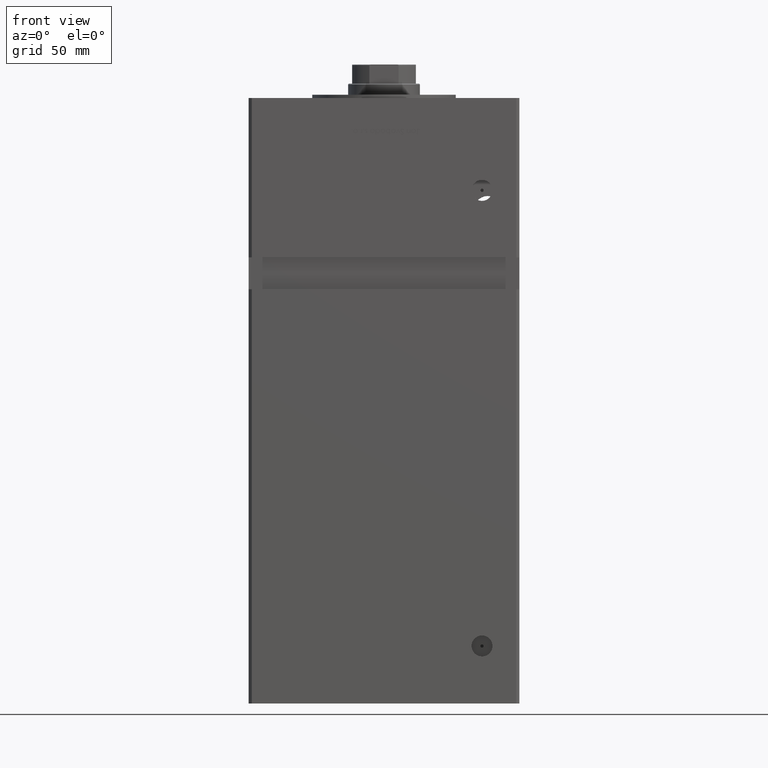
[diagram: clean part render]
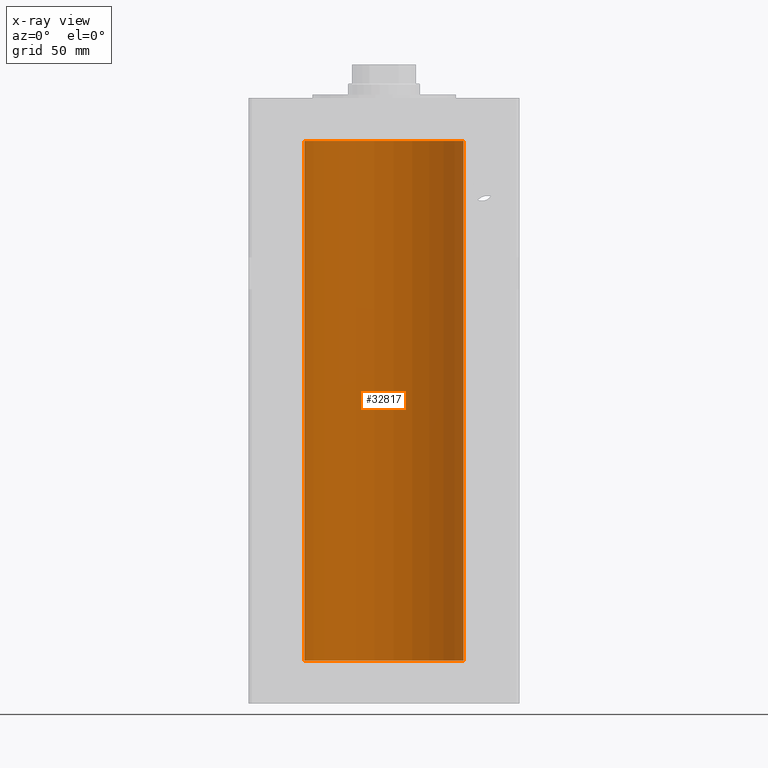
[diagram: x-ray — body ghosted, one internal face saturated and labeled with its STEP entity id]
A machine part, front view, then the same camera in x-ray: the body is ghosted and one INTERNAL B-rep face — a face not visible from any outside direction — is saturated and labeled: STEP entity #32817.
In plain terms, the highlighted cylindrical surface (partial cylindrical patch) has radius 50 mm, axis along (-0, -0, -1).
Its self-contained STEP definition (entity closure, byte-faithful):
#448 = CIRCLE ( 'NONE', #17559, 50.00000000000000000 ) ;
#1222 = CARTESIAN_POINT ( 'NONE',  ( 0.000000000000000000, 0.000000000000000000, 326.0000000000000000 ) ) ;
#3717 = DIRECTION ( 'NONE',  ( -0.000000000000000000, -0.000000000000000000, -1.000000000000000000 ) ) ;
#4957 = VECTOR ( 'NONE', #25013, 1000.000000000000000 ) ;
#6174 = CIRCLE ( 'NONE', #37911, 50.00000000000000000 ) ;
#8211 = CARTESIAN_POINT ( 'NONE',  ( -50.00000000000000000, 0.000000000000000000, 326.0000000000000000 ) ) ;
#8262 = DIRECTION ( 'NONE',  ( -1.000000000000000000, 0.000000000000000000, 0.000000000000000000 ) ) ;
#8462 = AXIS2_PLACEMENT_3D ( 'NONE', #20347, #3717, #8262 ) ;
#11872 = VERTEX_POINT ( 'NONE', #37229 ) ;
#12654 = ORIENTED_EDGE ( 'NONE', *, *, #48726, .T. ) ;
#14382 = CARTESIAN_POINT ( 'NONE',  ( 50.00000000000000000, 6.123233995736766085E-15, 326.0000000000000000 ) ) ;
#16580 = CYLINDRICAL_SURFACE ( 'NONE', #8462, 50.00000000000000000 ) ;
#16792 = DIRECTION ( 'NONE',  ( -0.000000000000000000, -0.000000000000000000, -1.000000000000000000 ) ) ;
#17559 = AXIS2_PLACEMENT_3D ( 'NONE', #29748, #25705, #28948 ) ;
#17673 = EDGE_CURVE ( 'NONE', #28632, #31391, #448, .T. ) ;
#20021 = CARTESIAN_POINT ( 'NONE',  ( 50.00000000000000000, 6.123233995736766085E-15, 0.000000000000000000 ) ) ;
#20347 = CARTESIAN_POINT ( 'NONE',  ( 0.000000000000000000, 0.000000000000000000, 326.0000000000000000 ) ) ;
#20613 = FACE_OUTER_BOUND ( 'NONE', #35061, .T. ) ;
#20983 = LINE ( 'NONE', #45180, #4957 ) ;
#22307 = ORIENTED_EDGE ( 'NONE', *, *, #50478, .T. ) ;
#25013 = DIRECTION ( 'NONE',  ( -0.000000000000000000, -0.000000000000000000, -1.000000000000000000 ) ) ;
#25577 = VERTEX_POINT ( 'NONE', #14382 ) ;
#25705 = DIRECTION ( 'NONE',  ( -0.000000000000000000, 0.000000000000000000, 1.000000000000000000 ) ) ;
#26216 = EDGE_CURVE ( 'NONE', #25577, #28632, #20983, .T. ) ;
#28632 = VERTEX_POINT ( 'NONE', #20021 ) ;
#28948 = DIRECTION ( 'NONE',  ( 1.000000000000000000, 0.000000000000000000, 0.000000000000000000 ) ) ;
#29748 = CARTESIAN_POINT ( 'NONE',  ( 0.000000000000000000, 0.000000000000000000, 0.000000000000000000 ) ) ;
#31391 = VERTEX_POINT ( 'NONE', #39849 ) ;
#32817 = ADVANCED_FACE ( 'NONE', ( #20613 ), #16580, .F. ) ;
#34217 = DIRECTION ( 'NONE',  ( -0.000000000000000000, 0.000000000000000000, 1.000000000000000000 ) ) ;
#35061 = EDGE_LOOP ( 'NONE', ( #43279, #12654, #22307, #48617 ) ) ;
#37229 = CARTESIAN_POINT ( 'NONE',  ( -50.00000000000000000, 0.000000000000000000, 326.0000000000000000 ) ) ;
#37911 = AXIS2_PLACEMENT_3D ( 'NONE', #1222, #34217, #50611 ) ;
#39849 = CARTESIAN_POINT ( 'NONE',  ( -50.00000000000000000, 0.000000000000000000, 0.000000000000000000 ) ) ;
#40522 = VECTOR ( 'NONE', #16792, 1000.000000000000000 ) ;
#41243 = LINE ( 'NONE', #8211, #40522 ) ;
#43279 = ORIENTED_EDGE ( 'NONE', *, *, #26216, .F. ) ;
#45180 = CARTESIAN_POINT ( 'NONE',  ( 50.00000000000000000, 6.123233995736766085E-15, 326.0000000000000000 ) ) ;
#48617 = ORIENTED_EDGE ( 'NONE', *, *, #17673, .F. ) ;
#48726 = EDGE_CURVE ( 'NONE', #25577, #11872, #6174, .T. ) ;
#50478 = EDGE_CURVE ( 'NONE', #11872, #31391, #41243, .T. ) ;
#50611 = DIRECTION ( 'NONE',  ( 1.000000000000000000, 0.000000000000000000, 0.000000000000000000 ) ) ;